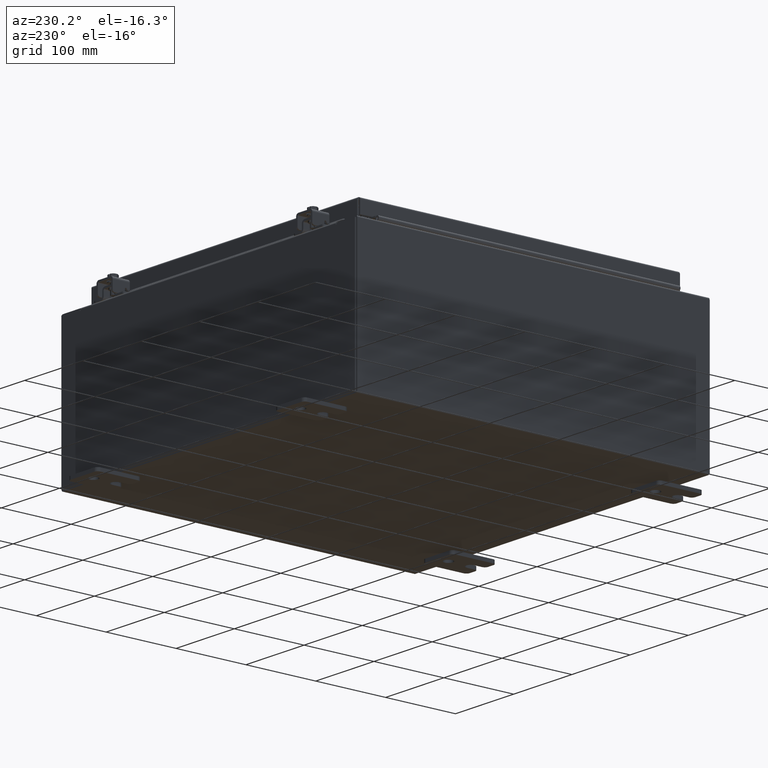
[diagram: clean part render]
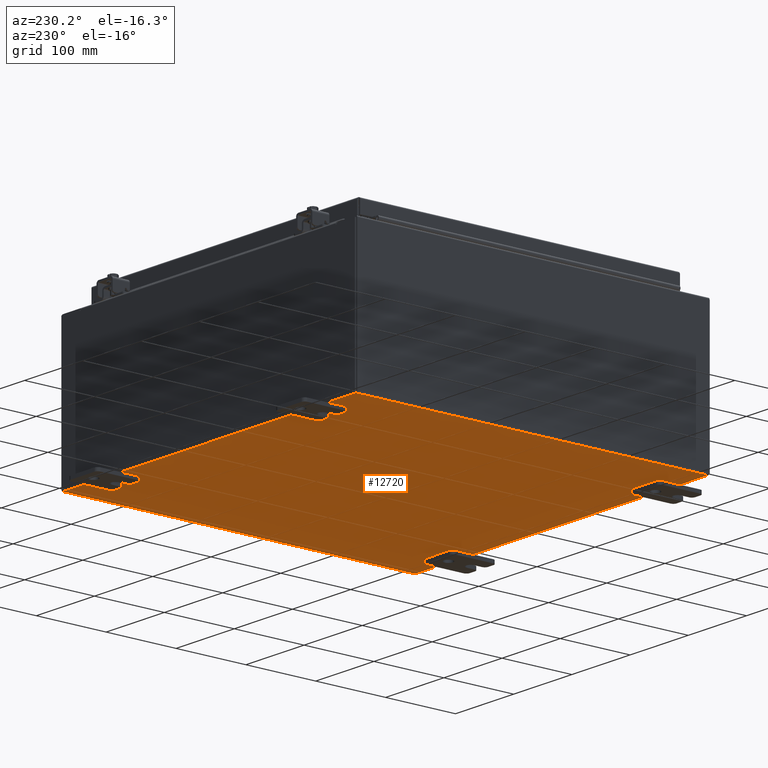
[diagram: same view with one face highlighted and labeled with its STEP entity id]
A machine part, auxiliary view. The second image highlights one B-rep face of the part: STEP entity #12720.
In plain terms, the highlighted planar face has unit normal (0, 0, -1).
Its self-contained STEP definition (entity closure, byte-faithful):
#462 = DIRECTION ( 'NONE',  ( -1.000000000000000000, 0.0000000000000000000, -0.0000000000000000000 ) ) ;
#1692 = CARTESIAN_POINT ( 'NONE',  ( -9.912300000000000100, -9.925299999999998200, -0.07469999999999994700 ) ) ;
#2217 = ORIENTED_EDGE ( 'NONE', *, *, #14052, .T. ) ;
#2241 = ORIENTED_EDGE ( 'NONE', *, *, #4298, .T. ) ;
#2813 = VERTEX_POINT ( 'NONE', #12830 ) ;
#3759 = FACE_OUTER_BOUND ( 'NONE', #26005, .T. ) ;
#4298 = EDGE_CURVE ( 'NONE', #23937, #2813, #11253, .T. ) ;
#5611 = ORIENTED_EDGE ( 'NONE', *, *, #27770, .F. ) ;
#5670 = CARTESIAN_POINT ( 'NONE',  ( 9.912300000000000100, 9.925300000000001800, -0.07469999999999994700 ) ) ;
#6232 = CARTESIAN_POINT ( 'NONE',  ( -10.00000000000000000, 9.925300000000001800, -0.07470000000000000300 ) ) ;
#6333 = DIRECTION ( 'NONE',  ( -1.000000000000000000, -0.0000000000000000000, -0.0000000000000000000 ) ) ;
#6791 = CARTESIAN_POINT ( 'NONE',  ( 9.912300000000000100, 9.925299999999998200, -0.07469999999999994700 ) ) ;
#6813 = AXIS2_PLACEMENT_3D ( 'NONE', #27717, #14097, #462 ) ;
#7780 = ORIENTED_EDGE ( 'NONE', *, *, #8873, .F. ) ;
#7932 = DIRECTION ( 'NONE',  ( -0.0000000000000000000, -1.000000000000000000, -0.0000000000000000000 ) ) ;
#8873 = EDGE_CURVE ( 'NONE', #11060, #2813, #12060, .T. ) ;
#9514 = PLANE ( 'NONE',  #6813 ) ;
#11060 = VERTEX_POINT ( 'NONE', #6791 ) ;
#11203 = CARTESIAN_POINT ( 'NONE',  ( -10.00000000000000000, -9.925299999999998200, -0.07470000000000000300 ) ) ;
#11253 = LINE ( 'NONE', #18752, #17332 ) ;
#11397 = DIRECTION ( 'NONE',  ( 1.000000000000000000, 0.0000000000000000000, 0.0000000000000000000 ) ) ;
#12060 = LINE ( 'NONE', #6232, #17403 ) ;
#12575 = LINE ( 'NONE', #5670, #23943 ) ;
#12720 = ADVANCED_FACE ( 'NONE', ( #3759 ), #9514, .T. ) ;
#12830 = CARTESIAN_POINT ( 'NONE',  ( -9.912300000000000100, 9.925300000000001800, -0.07470000000000000300 ) ) ;
#14052 = EDGE_CURVE ( 'NONE', #11060, #26857, #12575, .T. ) ;
#14097 = DIRECTION ( 'NONE',  ( 0.0000000000000000000, 0.0000000000000000000, -1.000000000000000000 ) ) ;
#14182 = DIRECTION ( 'NONE',  ( -0.0000000000000000000, 1.000000000000000000, -0.0000000000000000000 ) ) ;
#14424 = CARTESIAN_POINT ( 'NONE',  ( 9.912300000000000100, -9.925299999999998200, -0.07470000000000000300 ) ) ;
#16845 = VECTOR ( 'NONE', #11397, 39.37007874015748100 ) ;
#17332 = VECTOR ( 'NONE', #14182, 39.37007874015748100 ) ;
#17403 = VECTOR ( 'NONE', #6333, 39.37007874015748100 ) ;
#18752 = CARTESIAN_POINT ( 'NONE',  ( -9.912300000000000100, -9.925299999999998200, -0.07469999999999994700 ) ) ;
#22857 = LINE ( 'NONE', #11203, #16845 ) ;
#23937 = VERTEX_POINT ( 'NONE', #1692 ) ;
#23943 = VECTOR ( 'NONE', #7932, 39.37007874015748100 ) ;
#26005 = EDGE_LOOP ( 'NONE', ( #5611, #2241, #7780, #2217 ) ) ;
#26857 = VERTEX_POINT ( 'NONE', #14424 ) ;
#27717 = CARTESIAN_POINT ( 'NONE',  ( 0.0000000000000000000, 0.0000000000000000000, -0.07470000000000000300 ) ) ;
#27770 = EDGE_CURVE ( 'NONE', #23937, #26857, #22857, .T. ) ;